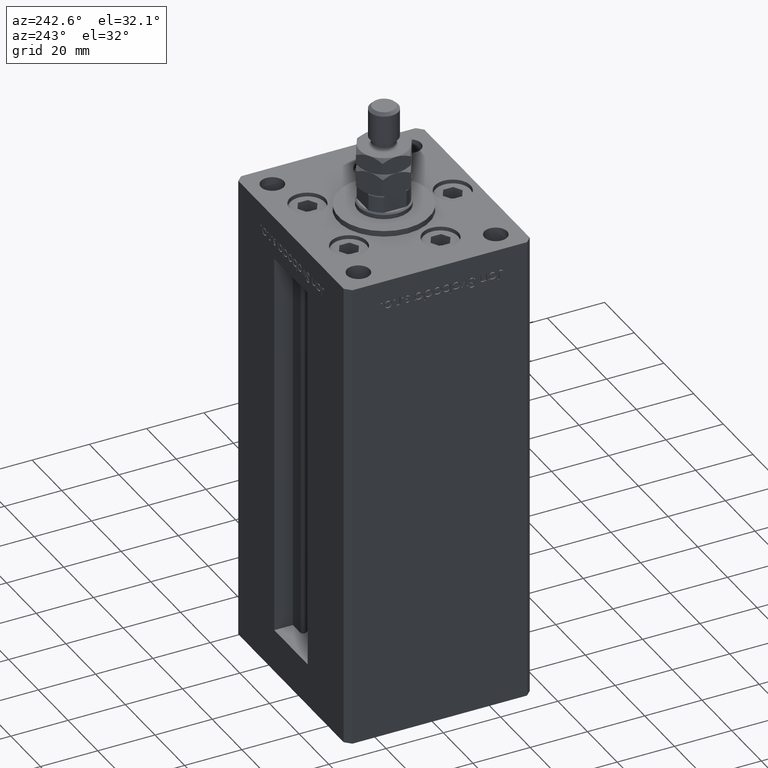
[diagram: clean part render]
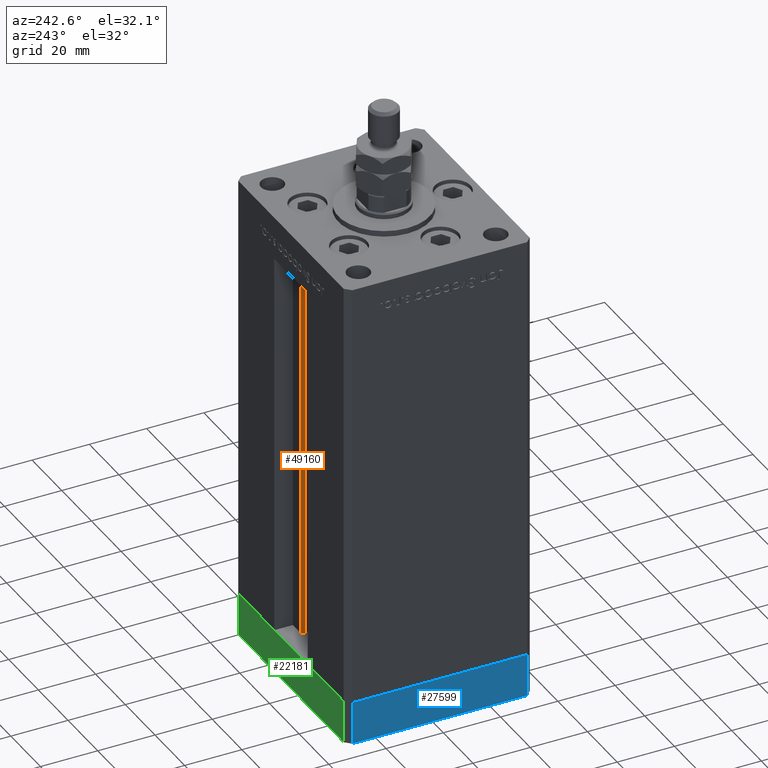
[diagram: same view with three faces highlighted in distinct colors, each labeled with its STEP entity id]
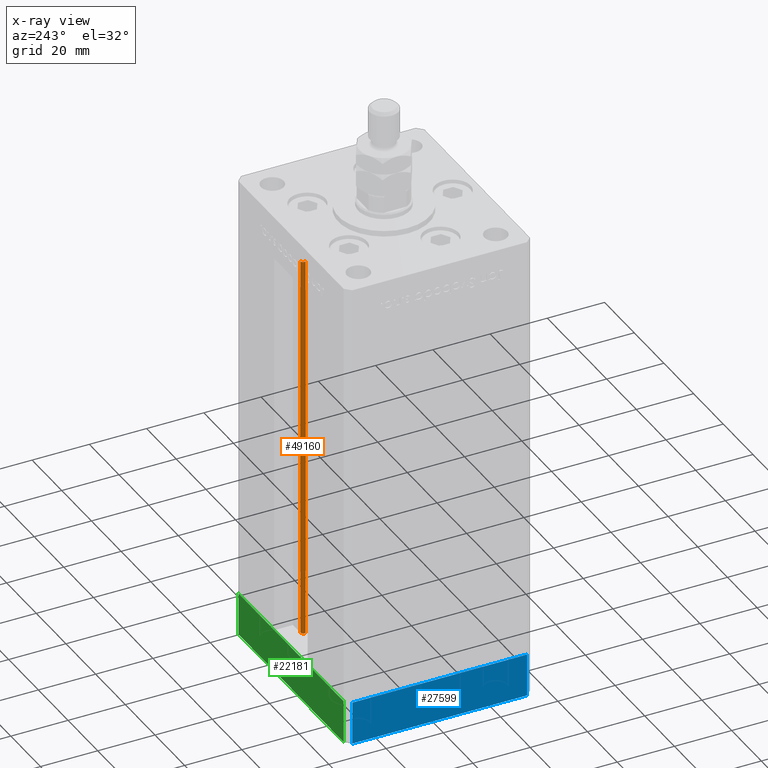
[diagram: x-ray of the same camera — body ghosted, the three highlighted faces saturated]
A machine part, auxiliary view with three faces highlighted in distinct colors.
The next image is the same camera in x-ray (body ghosted, the three faces saturated) — at least one of them is partly hidden behind the body in this view.
Their STEP definitions:

[orange] entity #49160 — the highlighted cylindrical surface (edge-blend (fillet) strip) has radius 0.9333 mm, axis along (0, 0, 1).
#413 = ORIENTED_EDGE ( 'NONE', *, *, #5625, .T. ) ;
#901 = DIRECTION ( 'NONE',  ( 1.000000000000000000, 0.000000000000000000, 0.000000000000000000 ) ) ;
#4881 = FACE_OUTER_BOUND ( 'NONE', #8859, .T. ) ;
#5020 = ORIENTED_EDGE ( 'NONE', *, *, #16155, .T. ) ;
#5625 = EDGE_CURVE ( 'NONE', #49887, #34990, #51084, .T. ) ;
#6059 = EDGE_CURVE ( 'NONE', #8794, #8596, #43397, .T. ) ;
#6885 = CIRCLE ( 'NONE', #36390, 0.9333333333340008142 ) ;
#7868 = ORIENTED_EDGE ( 'NONE', *, *, #52014, .F. ) ;
#7946 = VECTOR ( 'NONE', #39583, 1000.000000000000000 ) ;
#8596 = VERTEX_POINT ( 'NONE', #31396 ) ;
#8794 = VERTEX_POINT ( 'NONE', #42236 ) ;
#8859 = EDGE_LOOP ( 'NONE', ( #52333, #7868, #413, #5020 ) ) ;
#13278 = DIRECTION ( 'NONE',  ( -0.000000000000000000, -0.000000000000000000, 1.000000000000000000 ) ) ;
#14163 = AXIS2_PLACEMENT_3D ( 'NONE', #46570, #50922, #901 ) ;
#15584 = CARTESIAN_POINT ( 'NONE',  ( 6.183333333334001480, 25.06666666666599141, 0.000000000000000000 ) ) ;
#16155 = EDGE_CURVE ( 'NONE', #34990, #8596, #31502, .T. ) ;
#19715 = DIRECTION ( 'NONE',  ( 1.000000000000000000, 0.000000000000000000, 0.000000000000000000 ) ) ;
#26335 = CARTESIAN_POINT ( 'NONE',  ( 5.375042956467947164, 24.59999999999899245, 0.000000000000000000 ) ) ;
#29610 = CYLINDRICAL_SURFACE ( 'NONE', #40682, 0.9333333333340008142 ) ;
#30437 = VECTOR ( 'NONE', #13278, 1000.000000000000000 ) ;
#31396 = CARTESIAN_POINT ( 'NONE',  ( 6.183333333334001480, 25.99999999999999289, 136.0000000000000000 ) ) ;
#31502 = CIRCLE ( 'NONE', #14163, 0.9333333333340008142 ) ;
#34657 = CARTESIAN_POINT ( 'NONE',  ( 5.375042956467947164, 24.59999999999899245, 0.000000000000000000 ) ) ;
#34990 = VERTEX_POINT ( 'NONE', #53736 ) ;
#35227 = CARTESIAN_POINT ( 'NONE',  ( 6.183333333334001480, 25.99999999999999289, 0.000000000000000000 ) ) ;
#35783 = CARTESIAN_POINT ( 'NONE',  ( 6.183333333334001480, 25.06666666666599141, 0.000000000000000000 ) ) ;
#36390 = AXIS2_PLACEMENT_3D ( 'NONE', #35783, #45293, #19715 ) ;
#39583 = DIRECTION ( 'NONE',  ( -0.000000000000000000, -0.000000000000000000, 1.000000000000000000 ) ) ;
#40682 = AXIS2_PLACEMENT_3D ( 'NONE', #15584, #42135, #44693 ) ;
#42135 = DIRECTION ( 'NONE',  ( -0.000000000000000000, -0.000000000000000000, 1.000000000000000000 ) ) ;
#42236 = CARTESIAN_POINT ( 'NONE',  ( 6.183333333334001480, 25.99999999999999289, 0.000000000000000000 ) ) ;
#43397 = LINE ( 'NONE', #35227, #7946 ) ;
#44693 = DIRECTION ( 'NONE',  ( 1.000000000000000000, 0.000000000000000000, 0.000000000000000000 ) ) ;
#45293 = DIRECTION ( 'NONE',  ( -0.000000000000000000, -0.000000000000000000, -1.000000000000000000 ) ) ;
#46570 = CARTESIAN_POINT ( 'NONE',  ( 6.183333333334001480, 25.06666666666599141, 136.0000000000000000 ) ) ;
#49160 = ADVANCED_FACE ( 'NONE', ( #4881 ), #29610, .T. ) ;
#49887 = VERTEX_POINT ( 'NONE', #34657 ) ;
#50922 = DIRECTION ( 'NONE',  ( 0.000000000000000000, 0.000000000000000000, -1.000000000000000000 ) ) ;
#51084 = LINE ( 'NONE', #26335, #30437 ) ;
#52014 = EDGE_CURVE ( 'NONE', #49887, #8794, #6885, .T. ) ;
#52333 = ORIENTED_EDGE ( 'NONE', *, *, #6059, .F. ) ;
#53736 = CARTESIAN_POINT ( 'NONE',  ( 5.375042956467948052, 24.59999999999899245, 136.0000000000000000 ) ) ;

[blue] entity #27599 — the highlighted planar face has unit normal (-1, 0, 0).
#2453 = CARTESIAN_POINT ( 'NONE',  ( 37.50000000000001421, -30.50000000000000711, -15.00000000000000000 ) ) ;
#7329 = DIRECTION ( 'NONE',  ( -1.478780668045802821E-15, 1.000000000000000000, 0.000000000000000000 ) ) ;
#7685 = FACE_OUTER_BOUND ( 'NONE', #28614, .T. ) ;
#10609 = VECTOR ( 'NONE', #12130, 1000.000000000000000 ) ;
#10854 = EDGE_CURVE ( 'NONE', #27374, #34712, #19468, .T. ) ;
#11017 = CARTESIAN_POINT ( 'NONE',  ( 37.49999999999992184, 30.50000000000001066, 0.000000000000000000 ) ) ;
#12130 = DIRECTION ( 'NONE',  ( 0.000000000000000000, 0.000000000000000000, 1.000000000000000000 ) ) ;
#12713 = ORIENTED_EDGE ( 'NONE', *, *, #27909, .F. ) ;
#19468 = LINE ( 'NONE', #40155, #10609 ) ;
#20482 = VECTOR ( 'NONE', #34303, 1000.000000000000000 ) ;
#20741 = CARTESIAN_POINT ( 'NONE',  ( 37.50000000000001421, -30.50000000000000711, 0.000000000000000000 ) ) ;
#21311 = ORIENTED_EDGE ( 'NONE', *, *, #41912, .T. ) ;
#22339 = CARTESIAN_POINT ( 'NONE',  ( 37.50000000000001421, -30.50000000000000711, 0.000000000000000000 ) ) ;
#22363 = LINE ( 'NONE', #25606, #20482 ) ;
#23138 = DIRECTION ( 'NONE',  ( -1.478780668045802821E-15, 1.000000000000000000, 0.000000000000000000 ) ) ;
#24329 = CARTESIAN_POINT ( 'NONE',  ( 37.50000000000001421, -30.50000000000000711, -15.00000000000000000 ) ) ;
#24536 = DIRECTION ( 'NONE',  ( 1.000000000000000000, 1.478780668045803018E-15, -0.000000000000000000 ) ) ;
#25552 = ORIENTED_EDGE ( 'NONE', *, *, #26088, .T. ) ;
#25589 = VECTOR ( 'NONE', #23138, 1000.000000000000000 ) ;
#25606 = CARTESIAN_POINT ( 'NONE',  ( 37.49999999999992184, 30.50000000000001066, -15.00000000000000000 ) ) ;
#26088 = EDGE_CURVE ( 'NONE', #37000, #42623, #22363, .T. ) ;
#27203 = LINE ( 'NONE', #22339, #25589 ) ;
#27347 = AXIS2_PLACEMENT_3D ( 'NONE', #40859, #24536, #52820 ) ;
#27374 = VERTEX_POINT ( 'NONE', #24329 ) ;
#27599 = ADVANCED_FACE ( 'NONE', ( #7685 ), #32409, .T. ) ;
#27909 = EDGE_CURVE ( 'NONE', #34712, #42623, #27203, .T. ) ;
#28614 = EDGE_LOOP ( 'NONE', ( #12713, #36268, #21311, #25552 ) ) ;
#32409 = PLANE ( 'NONE',  #27347 ) ;
#34303 = DIRECTION ( 'NONE',  ( 0.000000000000000000, 0.000000000000000000, 1.000000000000000000 ) ) ;
#34712 = VERTEX_POINT ( 'NONE', #20741 ) ;
#36268 = ORIENTED_EDGE ( 'NONE', *, *, #10854, .F. ) ;
#37000 = VERTEX_POINT ( 'NONE', #39270 ) ;
#39270 = CARTESIAN_POINT ( 'NONE',  ( 37.49999999999992184, 30.50000000000001066, -15.00000000000000000 ) ) ;
#39967 = LINE ( 'NONE', #2453, #51224 ) ;
#40155 = CARTESIAN_POINT ( 'NONE',  ( 37.50000000000001421, -30.50000000000000711, -15.00000000000000000 ) ) ;
#40859 = CARTESIAN_POINT ( 'NONE',  ( 37.50000000000001421, -30.50000000000000711, -15.00000000000000000 ) ) ;
#41912 = EDGE_CURVE ( 'NONE', #27374, #37000, #39967, .T. ) ;
#42623 = VERTEX_POINT ( 'NONE', #11017 ) ;
#51224 = VECTOR ( 'NONE', #7329, 1000.000000000000000 ) ;
#52820 = DIRECTION ( 'NONE',  ( -1.478780668045803018E-15, 1.000000000000000000, 0.000000000000000000 ) ) ;

[green] entity #22181 — the highlighted planar face has unit normal (0, 1, 0).
#169 = VERTEX_POINT ( 'NONE', #19939 ) ;
#254 = DIRECTION ( 'NONE',  ( 0.000000000000000000, 0.000000000000000000, 1.000000000000000000 ) ) ;
#612 = LINE ( 'NONE', #12323, #20359 ) ;
#4951 = EDGE_CURVE ( 'NONE', #46827, #31299, #51446, .T. ) ;
#6065 = VERTEX_POINT ( 'NONE', #52352 ) ;
#7815 = DIRECTION ( 'NONE',  ( -1.000000000000000000, -1.954618001100629052E-16, 0.000000000000000000 ) ) ;
#9305 = DIRECTION ( 'NONE',  ( -1.000000000000000000, -1.954618001100629052E-16, 0.000000000000000000 ) ) ;
#12323 = CARTESIAN_POINT ( 'NONE',  ( 35.49999999999992184, 32.50000000000000711, -15.00000000000000000 ) ) ;
#13132 = ORIENTED_EDGE ( 'NONE', *, *, #22150, .F. ) ;
#13136 = ORIENTED_EDGE ( 'NONE', *, *, #17575, .T. ) ;
#13676 = VECTOR ( 'NONE', #7815, 1000.000000000000000 ) ;
#13950 = VECTOR ( 'NONE', #34580, 1000.000000000000000 ) ;
#17575 = EDGE_CURVE ( 'NONE', #6065, #31299, #24716, .T. ) ;
#19939 = CARTESIAN_POINT ( 'NONE',  ( 35.49999999999992184, 32.50000000000000711, -15.00000000000000000 ) ) ;
#20359 = VECTOR ( 'NONE', #53633, 1000.000000000000000 ) ;
#22150 = EDGE_CURVE ( 'NONE', #169, #46827, #612, .T. ) ;
#22181 = ADVANCED_FACE ( 'NONE', ( #46550 ), #37846, .T. ) ;
#24716 = LINE ( 'NONE', #41049, #28089 ) ;
#28089 = VECTOR ( 'NONE', #254, 1000.000000000000000 ) ;
#28884 = CARTESIAN_POINT ( 'NONE',  ( 35.49999999999992184, 32.50000000000000711, -15.00000000000000000 ) ) ;
#31299 = VERTEX_POINT ( 'NONE', #41666 ) ;
#34580 = DIRECTION ( 'NONE',  ( -1.000000000000000000, -1.954618001100629052E-16, 0.000000000000000000 ) ) ;
#35001 = EDGE_LOOP ( 'NONE', ( #43339, #13132, #45818, #13136 ) ) ;
#35574 = EDGE_CURVE ( 'NONE', #169, #6065, #41254, .T. ) ;
#35829 = CARTESIAN_POINT ( 'NONE',  ( 35.49999999999992184, 32.50000000000000711, -15.00000000000000000 ) ) ;
#37846 = PLANE ( 'NONE',  #44719 ) ;
#41049 = CARTESIAN_POINT ( 'NONE',  ( -35.50000000000002842, 32.49999999999999289, -15.00000000000000000 ) ) ;
#41254 = LINE ( 'NONE', #35829, #13676 ) ;
#41666 = CARTESIAN_POINT ( 'NONE',  ( -35.50000000000002842, 32.49999999999999289, 0.000000000000000000 ) ) ;
#43339 = ORIENTED_EDGE ( 'NONE', *, *, #4951, .F. ) ;
#44548 = CARTESIAN_POINT ( 'NONE',  ( 35.49999999999992184, 32.50000000000000711, 0.000000000000000000 ) ) ;
#44719 = AXIS2_PLACEMENT_3D ( 'NONE', #28884, #50356, #9305 ) ;
#45818 = ORIENTED_EDGE ( 'NONE', *, *, #35574, .T. ) ;
#46550 = FACE_OUTER_BOUND ( 'NONE', #35001, .T. ) ;
#46827 = VERTEX_POINT ( 'NONE', #44548 ) ;
#47639 = CARTESIAN_POINT ( 'NONE',  ( 35.49999999999992184, 32.50000000000000711, 0.000000000000000000 ) ) ;
#50356 = DIRECTION ( 'NONE',  ( -1.954618001100629052E-16, 1.000000000000000000, 0.000000000000000000 ) ) ;
#51446 = LINE ( 'NONE', #47639, #13950 ) ;
#52352 = CARTESIAN_POINT ( 'NONE',  ( -35.50000000000002842, 32.49999999999999289, -15.00000000000000000 ) ) ;
#53633 = DIRECTION ( 'NONE',  ( 0.000000000000000000, 0.000000000000000000, 1.000000000000000000 ) ) ;